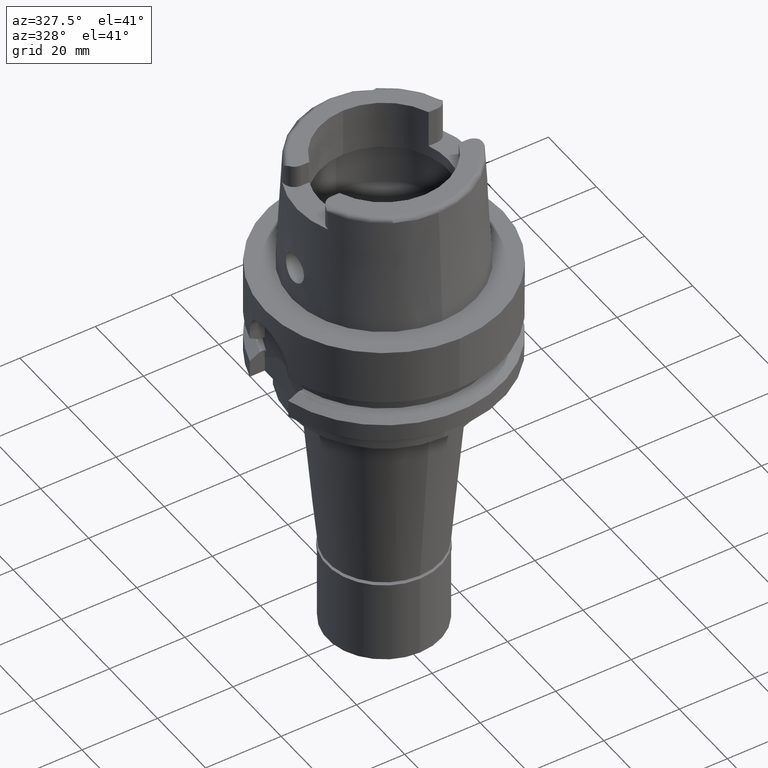
[diagram: clean part render]
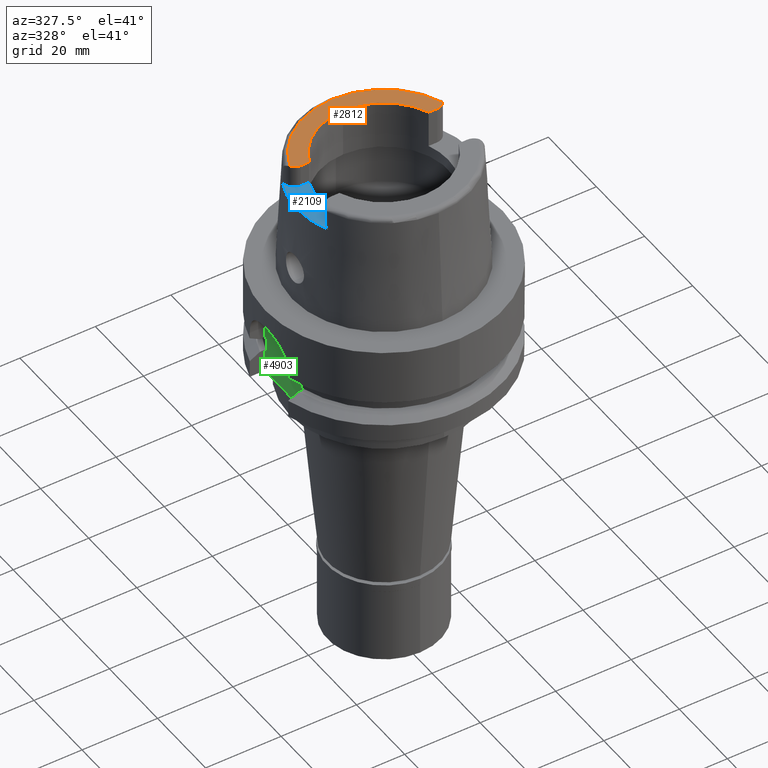
[diagram: same view with three faces highlighted in distinct colors, each labeled with its STEP entity id]
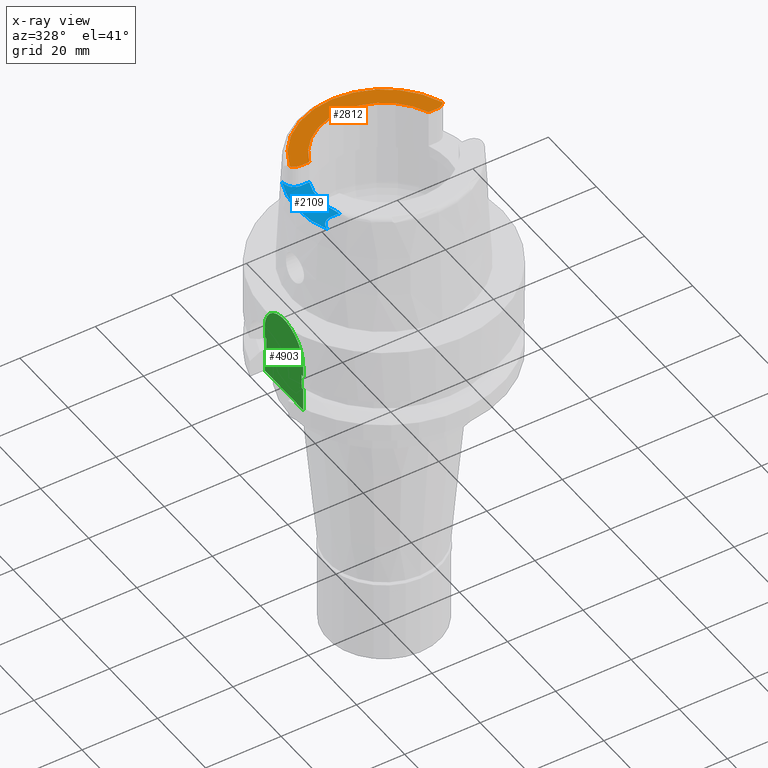
[diagram: x-ray of the same camera — body ghosted, the three highlighted faces saturated]
A machine part, auxiliary view with three faces highlighted in distinct colors.
The next image is the same camera in x-ray (body ghosted, the three faces saturated) — at least one of them is partly hidden behind the body in this view.
Their STEP definitions:

[orange] entity #2812 — the highlighted planar face has unit normal (0, 0, 1).
#17 = CIRCLE ( 'NONE', #3115, 17.00000000000000000 ) ;
#61 = AXIS2_PLACEMENT_3D ( 'NONE', #3547, #2406, #2378 ) ;
#65 = CIRCLE ( 'NONE', #2728, 2.880000000000000782 ) ;
#105 = ORIENTED_EDGE ( 'NONE', *, *, #608, .F. ) ;
#247 = DIRECTION ( 'NONE',  ( 0.0000000000000000000, 0.0000000000000000000, 1.000000000000000000 ) ) ;
#375 = ORIENTED_EDGE ( 'NONE', *, *, #3685, .F. ) ;
#384 = DIRECTION ( 'NONE',  ( 0.0000000000000000000, 0.0000000000000000000, 1.000000000000000000 ) ) ;
#560 = EDGE_CURVE ( 'NONE', #4630, #3064, #2923, .T. ) ;
#608 = EDGE_CURVE ( 'NONE', #2132, #2949, #17, .T. ) ;
#669 = CIRCLE ( 'NONE', #5024, 2.800000000000000711 ) ;
#744 = CARTESIAN_POINT ( 'NONE',  ( -17.98999999999999844, 9.150000000000000355, 32.00000000000000000 ) ) ;
#764 = CARTESIAN_POINT ( 'NONE',  ( 0.0000000000000000000, 0.0000000000000000000, 32.00000000000000000 ) ) ;
#969 = ORIENTED_EDGE ( 'NONE', *, *, #4127, .F. ) ;
#1078 = DIRECTION ( 'NONE',  ( 0.9294994374136111848, 0.3688235294118045182, 0.0000000000000000000 ) ) ;
#1215 = PLANE ( 'NONE',  #3158 ) ;
#1243 = CARTESIAN_POINT ( 'NONE',  ( -15.80149043602999903, 6.270000000000000462, 32.00000000000000000 ) ) ;
#1296 = CARTESIAN_POINT ( 'NONE',  ( 0.0000000000000000000, 0.0000000000000000000, 32.00000000000000000 ) ) ;
#1328 = EDGE_CURVE ( 'NONE', #3427, #2949, #1570, .T. ) ;
#1570 = LINE ( 'NONE', #3238, #3332 ) ;
#1693 = DIRECTION ( 'NONE',  ( 0.0000000000000000000, 0.0000000000000000000, -1.000000000000000000 ) ) ;
#1919 = DIRECTION ( 'NONE',  ( 0.0000000000000000000, -1.000000000000000000, 0.0000000000000000000 ) ) ;
#1942 = CARTESIAN_POINT ( 'NONE',  ( 20.28174256341000259, 7.352969181062000814, 32.00000000000000000 ) ) ;
#1989 = DIRECTION ( 'NONE',  ( 1.000000000000000000, 8.644330667353000255E-14, 0.0000000000000000000 ) ) ;
#2111 = DIRECTION ( 'NONE',  ( 1.000000000000000000, 0.0000000000000000000, 0.0000000000000000000 ) ) ;
#2132 = VERTEX_POINT ( 'NONE', #5337 ) ;
#2212 = VERTEX_POINT ( 'NONE', #5418 ) ;
#2216 = CARTESIAN_POINT ( 'NONE',  ( 0.0000000000000000000, 0.0000000000000000000, 32.00000000000000000 ) ) ;
#2378 = DIRECTION ( 'NONE',  ( -0.9395199128801114963, 0.3424942821446042007, 0.0000000000000000000 ) ) ;
#2406 = DIRECTION ( 'NONE',  ( 0.0000000000000000000, 0.0000000000000000000, -1.000000000000000000 ) ) ;
#2459 = EDGE_CURVE ( 'NONE', #5079, #3064, #669, .T. ) ;
#2470 = CIRCLE ( 'NONE', #5131, 17.00000000000000000 ) ;
#2677 = CARTESIAN_POINT ( 'NONE',  ( -17.98999999999999844, 6.270000000000000462, 32.00000000000000000 ) ) ;
#2728 = AXIS2_PLACEMENT_3D ( 'NONE', #744, #4149, #1919 ) ;
#2812 = ADVANCED_FACE ( 'NONE', ( #2966 ), #1215, .T. ) ;
#2923 = LINE ( 'NONE', #3368, #3563 ) ;
#2949 = VERTEX_POINT ( 'NONE', #1243 ) ;
#2966 = FACE_OUTER_BOUND ( 'NONE', #4751, .T. ) ;
#3021 = CARTESIAN_POINT ( 'NONE',  ( 18.07000000000000028, 6.270000000000000462, 32.00000000000000000 ) ) ;
#3064 = VERTEX_POINT ( 'NONE', #3021 ) ;
#3104 = DIRECTION ( 'NONE',  ( 0.0000000000000000000, 1.000000000000000000, 0.0000000000000000000 ) ) ;
#3115 = AXIS2_PLACEMENT_3D ( 'NONE', #2216, #4778, #3104 ) ;
#3158 = AXIS2_PLACEMENT_3D ( 'NONE', #1296, #384, #2111 ) ;
#3170 = CIRCLE ( 'NONE', #61, 21.57348458608998598 ) ;
#3184 = ORIENTED_EDGE ( 'NONE', *, *, #5069, .F. ) ;
#3215 = ORIENTED_EDGE ( 'NONE', *, *, #560, .T. ) ;
#3238 = CARTESIAN_POINT ( 'NONE',  ( -17.98999999999999844, 6.270000000000000462, 32.00000000000000000 ) ) ;
#3332 = VECTOR ( 'NONE', #1989, 1000.000000000000000 ) ;
#3368 = CARTESIAN_POINT ( 'NONE',  ( 15.80149043602999903, 6.270000000000000462, 32.00000000000000000 ) ) ;
#3396 = DIRECTION ( 'NONE',  ( 0.7899080583621905793, -0.6132252924777926717, 0.0000000000000000000 ) ) ;
#3427 = VERTEX_POINT ( 'NONE', #2677 ) ;
#3547 = CARTESIAN_POINT ( 'NONE',  ( 0.0000000000000000000, 0.0000000000000000000, 32.00000000000000000 ) ) ;
#3563 = VECTOR ( 'NONE', #4205, 1000.000000000000000 ) ;
#3685 = EDGE_CURVE ( 'NONE', #2212, #5079, #3170, .T. ) ;
#3812 = CARTESIAN_POINT ( 'NONE',  ( 18.07000000000000028, 9.070000000000000284, 32.00000000000000000 ) ) ;
#4127 = EDGE_CURVE ( 'NONE', #3427, #2212, #65, .T. ) ;
#4149 = DIRECTION ( 'NONE',  ( 0.0000000000000000000, 0.0000000000000000000, -1.000000000000000000 ) ) ;
#4205 = DIRECTION ( 'NONE',  ( 1.000000000000000000, -8.222026968698000936E-14, 0.0000000000000000000 ) ) ;
#4252 = ORIENTED_EDGE ( 'NONE', *, *, #1328, .T. ) ;
#4475 = ORIENTED_EDGE ( 'NONE', *, *, #2459, .F. ) ;
#4630 = VERTEX_POINT ( 'NONE', #5339 ) ;
#4751 = EDGE_LOOP ( 'NONE', ( #105, #3184, #3215, #4475, #375, #969, #4252 ) ) ;
#4778 = DIRECTION ( 'NONE',  ( 0.0000000000000000000, 0.0000000000000000000, 1.000000000000000000 ) ) ;
#5024 = AXIS2_PLACEMENT_3D ( 'NONE', #3812, #1693, #3396 ) ;
#5069 = EDGE_CURVE ( 'NONE', #4630, #2132, #2470, .T. ) ;
#5079 = VERTEX_POINT ( 'NONE', #1942 ) ;
#5131 = AXIS2_PLACEMENT_3D ( 'NONE', #764, #247, #1078 ) ;
#5337 = CARTESIAN_POINT ( 'NONE',  ( 0.0000000000000000000, 17.00000000000000000, 32.00000000000000000 ) ) ;
#5339 = CARTESIAN_POINT ( 'NONE',  ( 15.80149043602999903, 6.270000000000000462, 32.00000000000000000 ) ) ;
#5418 = CARTESIAN_POINT ( 'NONE',  ( -20.26871835884000106, 7.388795116669998997, 32.00000000000000000 ) ) ;

[blue] entity #2109 — the highlighted planar face has unit normal (0, 0, 1).
#54 = DIRECTION ( 'NONE',  ( 5.336846542900780513E-06, -0.9999999999857590582, 3.860251871643844625E-14 ) ) ;
#109 = EDGE_CURVE ( 'NONE', #3124, #2273, #3662, .T. ) ;
#142 = DIRECTION ( 'NONE',  ( 0.0000000000000000000, 1.000000000000000000, 0.0000000000000000000 ) ) ;
#175 = CARTESIAN_POINT ( 'NONE',  ( 0.0000000000000000000, 0.0000000000000000000, 26.00000000000000000 ) ) ;
#366 = CARTESIAN_POINT ( 'NONE',  ( -17.98999999999999844, 9.150000000000000355, 26.00000000000000000 ) ) ;
#416 = EDGE_CURVE ( 'NONE', #563, #3500, #4358, .T. ) ;
#563 = VERTEX_POINT ( 'NONE', #1169 ) ;
#641 = DIRECTION ( 'NONE',  ( 1.000000000000000000, 0.0000000000000000000, 0.0000000000000000000 ) ) ;
#816 = VERTEX_POINT ( 'NONE', #3588 ) ;
#827 = EDGE_LOOP ( 'NONE', ( #4439, #5405, #5027, #2595, #3370, #2753, #2375, #4496 ) ) ;
#830 = LINE ( 'NONE', #1828, #2898 ) ;
#937 = LINE ( 'NONE', #3049, #2531 ) ;
#974 = CARTESIAN_POINT ( 'NONE',  ( -17.98999999999999844, -9.150000000000000355, 26.00000000000000000 ) ) ;
#1107 = DIRECTION ( 'NONE',  ( -0.9068002397791221636, -0.4215605829967106200, 0.0000000000000000000 ) ) ;
#1111 = CARTESIAN_POINT ( 'NONE',  ( 0.0000000000000000000, 0.0000000000000000000, 26.00000000000000000 ) ) ;
#1116 = EDGE_CURVE ( 'NONE', #2273, #5165, #1791, .T. ) ;
#1169 = CARTESIAN_POINT ( 'NONE',  ( -20.87000000000000099, 9.150000000000000355, 26.00000000000000000 ) ) ;
#1250 = DIRECTION ( 'NONE',  ( -1.000000000000000000, 8.644330667353000255E-14, 0.0000000000000000000 ) ) ;
#1340 = CARTESIAN_POINT ( 'NONE',  ( -15.80149043602999903, 6.270000000000000462, 26.00000000000000000 ) ) ;
#1370 = DIRECTION ( 'NONE',  ( 1.239823711411039370E-06, -0.9999999999992315036, -3.860130687255118314E-14 ) ) ;
#1514 = VERTEX_POINT ( 'NONE', #1340 ) ;
#1612 = AXIS2_PLACEMENT_3D ( 'NONE', #974, #2248, #142 ) ;
#1708 = CARTESIAN_POINT ( 'NONE',  ( -17.98999999999999844, 6.270000000000000462, 26.00000000000000000 ) ) ;
#1791 = LINE ( 'NONE', #5177, #2099 ) ;
#1792 = EDGE_CURVE ( 'NONE', #3500, #1514, #830, .T. ) ;
#1828 = CARTESIAN_POINT ( 'NONE',  ( -17.98999999999999844, 6.270000000000000462, 26.00000000000000000 ) ) ;
#1842 = CIRCLE ( 'NONE', #2552, 23.01499170873999134 ) ;
#1954 = PLANE ( 'NONE',  #3608 ) ;
#2062 = CARTESIAN_POINT ( 'NONE',  ( 0.0000000000000000000, 0.0000000000000000000, 26.00000000000000000 ) ) ;
#2065 = CARTESIAN_POINT ( 'NONE',  ( -20.87000000000000099, -9.150000000000000355, 26.00000000000000000 ) ) ;
#2099 = VECTOR ( 'NONE', #1370, 999.9999999999998863 ) ;
#2109 = ADVANCED_FACE ( 'NONE', ( #4037 ), #1954, .T. ) ;
#2180 = VECTOR ( 'NONE', #1250, 1000.000000000000000 ) ;
#2248 = DIRECTION ( 'NONE',  ( 0.0000000000000000000, 0.0000000000000000000, 1.000000000000000000 ) ) ;
#2273 = VERTEX_POINT ( 'NONE', #2065 ) ;
#2375 = ORIENTED_EDGE ( 'NONE', *, *, #2409, .F. ) ;
#2409 = EDGE_CURVE ( 'NONE', #816, #3124, #5033, .T. ) ;
#2469 = DIRECTION ( 'NONE',  ( 0.0000000000000000000, 0.0000000000000000000, 1.000000000000000000 ) ) ;
#2531 = VECTOR ( 'NONE', #54, 1000.000000000000000 ) ;
#2544 = EDGE_CURVE ( 'NONE', #2711, #563, #937, .T. ) ;
#2552 = AXIS2_PLACEMENT_3D ( 'NONE', #2062, #5002, #1107 ) ;
#2595 = ORIENTED_EDGE ( 'NONE', *, *, #4829, .F. ) ;
#2711 = VERTEX_POINT ( 'NONE', #5332 ) ;
#2753 = ORIENTED_EDGE ( 'NONE', *, *, #109, .F. ) ;
#2783 = DIRECTION ( 'NONE',  ( 0.0000000000000000000, 0.0000000000000000000, 1.000000000000000000 ) ) ;
#2898 = VECTOR ( 'NONE', #3399, 1000.000000000000000 ) ;
#3049 = CARTESIAN_POINT ( 'NONE',  ( -20.87000294699999969, 9.702199254901000103, 26.00000000000000000 ) ) ;
#3124 = VERTEX_POINT ( 'NONE', #5376 ) ;
#3244 = CARTESIAN_POINT ( 'NONE',  ( -20.86999931535000385, -9.702216590572000143, 26.00000000000000000 ) ) ;
#3314 = CARTESIAN_POINT ( 'NONE',  ( -15.80149043602999903, -6.270000000000000462, 26.00000000000000000 ) ) ;
#3370 = ORIENTED_EDGE ( 'NONE', *, *, #1116, .F. ) ;
#3393 = DIRECTION ( 'NONE',  ( -1.000000000000000000, 0.0000000000000000000, 0.0000000000000000000 ) ) ;
#3399 = DIRECTION ( 'NONE',  ( 1.000000000000000000, 8.644330667353000255E-14, 0.0000000000000000000 ) ) ;
#3500 = VERTEX_POINT ( 'NONE', #1708 ) ;
#3588 = CARTESIAN_POINT ( 'NONE',  ( -15.80149043602999903, -6.270000000000000462, 26.00000000000000000 ) ) ;
#3608 = AXIS2_PLACEMENT_3D ( 'NONE', #1111, #2783, #641 ) ;
#3662 = CIRCLE ( 'NONE', #1612, 2.880000000000000782 ) ;
#3811 = DIRECTION ( 'NONE',  ( 0.0000000000000000000, 0.0000000000000000000, 1.000000000000000000 ) ) ;
#4008 = AXIS2_PLACEMENT_3D ( 'NONE', #366, #3811, #3393 ) ;
#4037 = FACE_OUTER_BOUND ( 'NONE', #827, .T. ) ;
#4249 = AXIS2_PLACEMENT_3D ( 'NONE', #175, #2469, #4539 ) ;
#4253 = CIRCLE ( 'NONE', #4249, 17.00000000000000000 ) ;
#4358 = CIRCLE ( 'NONE', #4008, 2.880000000000000782 ) ;
#4439 = ORIENTED_EDGE ( 'NONE', *, *, #1792, .F. ) ;
#4496 = ORIENTED_EDGE ( 'NONE', *, *, #5474, .F. ) ;
#4539 = DIRECTION ( 'NONE',  ( -0.9294994374136111848, 0.3688235294118045182, 0.0000000000000000000 ) ) ;
#4829 = EDGE_CURVE ( 'NONE', #5165, #2711, #1842, .T. ) ;
#5002 = DIRECTION ( 'NONE',  ( 0.0000000000000000000, 0.0000000000000000000, -1.000000000000000000 ) ) ;
#5027 = ORIENTED_EDGE ( 'NONE', *, *, #2544, .F. ) ;
#5033 = LINE ( 'NONE', #3314, #2180 ) ;
#5165 = VERTEX_POINT ( 'NONE', #3244 ) ;
#5177 = CARTESIAN_POINT ( 'NONE',  ( -20.87000000000000099, -9.150000000000000355, 26.00000000000000000 ) ) ;
#5332 = CARTESIAN_POINT ( 'NONE',  ( -20.87000000000000099, 9.702213322398998585, 26.00000000000000000 ) ) ;
#5376 = CARTESIAN_POINT ( 'NONE',  ( -17.98999999999999844, -6.270000000000000462, 26.00000000000000000 ) ) ;
#5405 = ORIENTED_EDGE ( 'NONE', *, *, #416, .F. ) ;
#5474 = EDGE_CURVE ( 'NONE', #1514, #816, #4253, .T. ) ;

[green] entity #4903 — the highlighted planar face has unit normal (1, 0, 0).
#46 = LINE ( 'NONE', #3908, #2547 ) ;
#74 = CARTESIAN_POINT ( 'NONE',  ( -26.50000000000000000, -7.348469228349999938, -16.12500000000000000 ) ) ;
#100 = CARTESIAN_POINT ( 'NONE',  ( -26.50000000000000000, 7.348469228349999938, -19.87500000000000000 ) ) ;
#219 = DIRECTION ( 'NONE',  ( 0.0000000000000000000, 0.0000000000000000000, 1.000000000000000000 ) ) ;
#274 = VERTEX_POINT ( 'NONE', #5360 ) ;
#280 = EDGE_LOOP ( 'NONE', ( #3721, #3050, #3056, #888, #3583, #588, #506, #4273, #4956, #2703, #2586, #1518 ) ) ;
#303 = CARTESIAN_POINT ( 'NONE',  ( -26.50000000000000000, -8.000000000000000000, -26.00000000000000000 ) ) ;
#398 = VECTOR ( 'NONE', #1088, 1000.000000000000000 ) ;
#482 = CARTESIAN_POINT ( 'NONE',  ( -26.50000000000000000, 8.000000000000000000, -13.00000000000000000 ) ) ;
#506 = ORIENTED_EDGE ( 'NONE', *, *, #1248, .T. ) ;
#568 = EDGE_CURVE ( 'NONE', #2870, #5118, #3498, .T. ) ;
#588 = ORIENTED_EDGE ( 'NONE', *, *, #1532, .F. ) ;
#620 = VERTEX_POINT ( 'NONE', #967 ) ;
#661 = CARTESIAN_POINT ( 'NONE',  ( -26.50000000000000000, 0.0000000000000000000, 0.0000000000000000000 ) ) ;
#843 = VECTOR ( 'NONE', #219, 1000.000000000000000 ) ;
#888 = ORIENTED_EDGE ( 'NONE', *, *, #2963, .F. ) ;
#900 = VERTEX_POINT ( 'NONE', #2081 ) ;
#907 = CARTESIAN_POINT ( 'NONE',  ( -26.50000000000000000, -8.000000000000000000, -16.12500000000000000 ) ) ;
#918 = VERTEX_POINT ( 'NONE', #2057 ) ;
#967 = CARTESIAN_POINT ( 'NONE',  ( -26.50000000000000000, -8.000000000000000000, -13.00000000000000000 ) ) ;
#976 = VERTEX_POINT ( 'NONE', #482 ) ;
#992 = DIRECTION ( 'NONE',  ( 0.0000000000000000000, 0.0000000000000000000, -1.000000000000000000 ) ) ;
#1080 = DIRECTION ( 'NONE',  ( 0.0000000000000000000, 0.0000000000000000000, 1.000000000000000000 ) ) ;
#1088 = DIRECTION ( 'NONE',  ( 0.0000000000000000000, 1.000000000000000000, 0.0000000000000000000 ) ) ;
#1105 = VERTEX_POINT ( 'NONE', #5155 ) ;
#1160 = VECTOR ( 'NONE', #992, 1000.000000000000000 ) ;
#1188 = DIRECTION ( 'NONE',  ( 0.0000000000000000000, 0.0000000000000000000, -1.000000000000000000 ) ) ;
#1248 = EDGE_CURVE ( 'NONE', #976, #4815, #3552, .T. ) ;
#1405 = LINE ( 'NONE', #907, #4408 ) ;
#1467 = VECTOR ( 'NONE', #5412, 1000.000000000000000 ) ;
#1518 = ORIENTED_EDGE ( 'NONE', *, *, #2196, .F. ) ;
#1532 = EDGE_CURVE ( 'NONE', #976, #620, #2718, .T. ) ;
#1632 = DIRECTION ( 'NONE',  ( 0.0000000000000000000, 1.000000000000000000, 0.0000000000000000000 ) ) ;
#1843 = EDGE_CURVE ( 'NONE', #1105, #4372, #5303, .T. ) ;
#1904 = VERTEX_POINT ( 'NONE', #3143 ) ;
#1947 = DIRECTION ( 'NONE',  ( -5.998158823386000371E-14, 1.000000000000000000, 0.0000000000000000000 ) ) ;
#2057 = CARTESIAN_POINT ( 'NONE',  ( -26.50000000000000000, -8.000000000000000000, -26.00000000000000000 ) ) ;
#2059 = LINE ( 'NONE', #5026, #3069 ) ;
#2081 = CARTESIAN_POINT ( 'NONE',  ( -26.50000000000000000, 7.348469228349999938, -16.12500000000000000 ) ) ;
#2082 = CARTESIAN_POINT ( 'NONE',  ( -26.50000000000000000, 8.000000000000000000, -19.87500000000000000 ) ) ;
#2196 = EDGE_CURVE ( 'NONE', #918, #5118, #3627, .T. ) ;
#2296 = CARTESIAN_POINT ( 'NONE',  ( -26.50000000000000000, 8.000000000000000000, -13.00000000000000000 ) ) ;
#2325 = DIRECTION ( 'NONE',  ( 0.0000000000000000000, 0.0000000000000000000, -1.000000000000000000 ) ) ;
#2400 = CARTESIAN_POINT ( 'NONE',  ( -26.50000000000000000, -8.000000000000000000, -26.00000000000000000 ) ) ;
#2547 = VECTOR ( 'NONE', #3854, 1000.000000000000000 ) ;
#2586 = ORIENTED_EDGE ( 'NONE', *, *, #568, .T. ) ;
#2661 = EDGE_CURVE ( 'NONE', #918, #1904, #5306, .T. ) ;
#2679 = EDGE_CURVE ( 'NONE', #900, #4815, #3282, .T. ) ;
#2703 = ORIENTED_EDGE ( 'NONE', *, *, #2710, .T. ) ;
#2710 = EDGE_CURVE ( 'NONE', #3461, #2870, #4480, .T. ) ;
#2718 = CIRCLE ( 'NONE', #4509, 8.000000000000000000 ) ;
#2762 = CARTESIAN_POINT ( 'NONE',  ( -26.50000000000000000, 0.0000000000000000000, -13.00000000000000000 ) ) ;
#2815 = EDGE_CURVE ( 'NONE', #1904, #1105, #3809, .T. ) ;
#2868 = EDGE_CURVE ( 'NONE', #900, #3461, #2059, .T. ) ;
#2870 = VERTEX_POINT ( 'NONE', #2082 ) ;
#2888 = DIRECTION ( 'NONE',  ( 1.000000000000000000, 0.0000000000000000000, 0.0000000000000000000 ) ) ;
#2963 = EDGE_CURVE ( 'NONE', #274, #4372, #1405, .T. ) ;
#3050 = ORIENTED_EDGE ( 'NONE', *, *, #2815, .T. ) ;
#3056 = ORIENTED_EDGE ( 'NONE', *, *, #1843, .T. ) ;
#3069 = VECTOR ( 'NONE', #1188, 1000.000000000000000 ) ;
#3143 = CARTESIAN_POINT ( 'NONE',  ( -26.50000000000000000, -8.000000000000000000, -19.87500000000000000 ) ) ;
#3146 = DIRECTION ( 'NONE',  ( 0.0000000000000000000, 1.000000000000000000, 0.0000000000000000000 ) ) ;
#3161 = VECTOR ( 'NONE', #2325, 1000.000000000000000 ) ;
#3282 = LINE ( 'NONE', #4866, #4665 ) ;
#3461 = VERTEX_POINT ( 'NONE', #100 ) ;
#3498 = LINE ( 'NONE', #3859, #1160 ) ;
#3552 = LINE ( 'NONE', #2296, #3161 ) ;
#3583 = ORIENTED_EDGE ( 'NONE', *, *, #4280, .T. ) ;
#3627 = LINE ( 'NONE', #2400, #398 ) ;
#3721 = ORIENTED_EDGE ( 'NONE', *, *, #2661, .T. ) ;
#3809 = LINE ( 'NONE', #4254, #1467 ) ;
#3854 = DIRECTION ( 'NONE',  ( 0.0000000000000000000, 0.0000000000000000000, 1.000000000000000000 ) ) ;
#3859 = CARTESIAN_POINT ( 'NONE',  ( -26.50000000000000000, 8.000000000000000000, -19.87500000000000000 ) ) ;
#3908 = CARTESIAN_POINT ( 'NONE',  ( -26.50000000000000000, -8.000000000000000000, -16.12500000000000000 ) ) ;
#3969 = DIRECTION ( 'NONE',  ( 5.998158823386000371E-14, 1.000000000000000000, 0.0000000000000000000 ) ) ;
#4254 = CARTESIAN_POINT ( 'NONE',  ( -26.50000000000000000, -8.000000000000000000, -19.87500000000000000 ) ) ;
#4273 = ORIENTED_EDGE ( 'NONE', *, *, #2679, .F. ) ;
#4280 = EDGE_CURVE ( 'NONE', #274, #620, #46, .T. ) ;
#4372 = VERTEX_POINT ( 'NONE', #74 ) ;
#4408 = VECTOR ( 'NONE', #3969, 1000.000000000000000 ) ;
#4480 = LINE ( 'NONE', #5382, #5370 ) ;
#4509 = AXIS2_PLACEMENT_3D ( 'NONE', #2762, #5318, #3146 ) ;
#4513 = DIRECTION ( 'NONE',  ( -5.998158823386000371E-14, 1.000000000000000000, 0.0000000000000000000 ) ) ;
#4566 = FACE_OUTER_BOUND ( 'NONE', #280, .T. ) ;
#4665 = VECTOR ( 'NONE', #4513, 1000.000000000000000 ) ;
#4683 = AXIS2_PLACEMENT_3D ( 'NONE', #661, #2888, #1632 ) ;
#4815 = VERTEX_POINT ( 'NONE', #4839 ) ;
#4839 = CARTESIAN_POINT ( 'NONE',  ( -26.50000000000000000, 8.000000000000000000, -16.12500000000000000 ) ) ;
#4866 = CARTESIAN_POINT ( 'NONE',  ( -26.50000000000000000, 7.348469228349999938, -16.12500000000000000 ) ) ;
#4892 = CARTESIAN_POINT ( 'NONE',  ( -26.50000000000000000, -7.348469228349999938, -19.87500000000000000 ) ) ;
#4903 = ADVANCED_FACE ( 'NONE', ( #4566 ), #5335, .F. ) ;
#4956 = ORIENTED_EDGE ( 'NONE', *, *, #2868, .T. ) ;
#5026 = CARTESIAN_POINT ( 'NONE',  ( -26.50000000000000000, 7.348469228349999938, -16.12500000000000000 ) ) ;
#5118 = VERTEX_POINT ( 'NONE', #5378 ) ;
#5155 = CARTESIAN_POINT ( 'NONE',  ( -26.50000000000000000, -7.348469228349999938, -19.87500000000000000 ) ) ;
#5303 = LINE ( 'NONE', #4892, #5458 ) ;
#5306 = LINE ( 'NONE', #303, #843 ) ;
#5318 = DIRECTION ( 'NONE',  ( 1.000000000000000000, 0.0000000000000000000, 0.0000000000000000000 ) ) ;
#5335 = PLANE ( 'NONE',  #4683 ) ;
#5360 = CARTESIAN_POINT ( 'NONE',  ( -26.50000000000000000, -8.000000000000000000, -16.12500000000000000 ) ) ;
#5370 = VECTOR ( 'NONE', #1947, 1000.000000000000000 ) ;
#5378 = CARTESIAN_POINT ( 'NONE',  ( -26.50000000000000000, 8.000000000000000000, -26.00000000000000000 ) ) ;
#5382 = CARTESIAN_POINT ( 'NONE',  ( -26.50000000000000000, 7.348469228349999938, -19.87500000000000000 ) ) ;
#5412 = DIRECTION ( 'NONE',  ( 5.998158823386000371E-14, 1.000000000000000000, 0.0000000000000000000 ) ) ;
#5458 = VECTOR ( 'NONE', #1080, 1000.000000000000000 ) ;